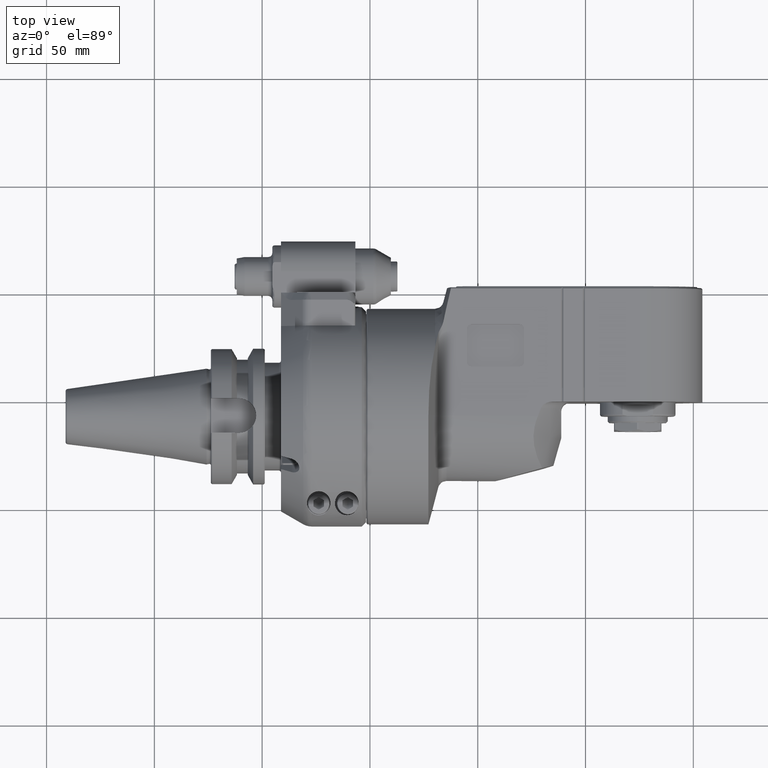
[diagram: clean part render]
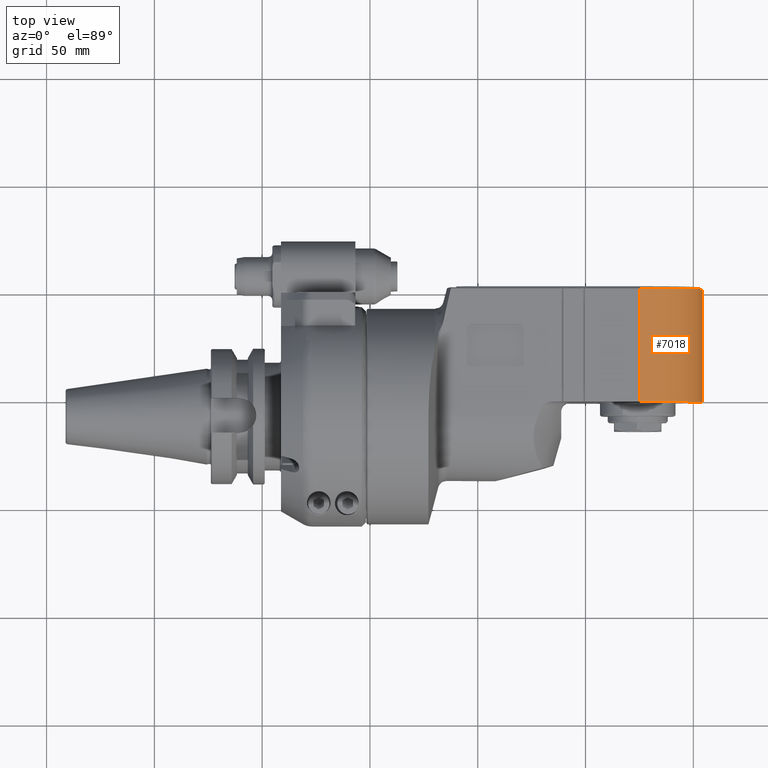
[diagram: same view with one face highlighted and labeled with its STEP entity id]
A machine part, top view. The second image highlights one B-rep face of the part: STEP entity #7018.
In plain terms, the highlighted cylindrical surface (partial cylindrical patch) has radius 29 mm, axis along (0, 1, 0).
Its self-contained STEP definition (entity closure, byte-faithful):
#695=FACE_OUTER_BOUND('',#1138,.T.);
#1138=EDGE_LOOP('',(#4908,#4909,#4910,#4911));
#1646=LINE('',#10678,#2146);
#1647=LINE('',#10682,#2147);
#2146=VECTOR('',#8450,52.5);
#2147=VECTOR('',#8455,52.5);
#2630=CIRCLE('',#7534,29.);
#2638=CIRCLE('',#7553,29.);
#2998=VERTEX_POINT('',#10604);
#2999=VERTEX_POINT('',#10606);
#3017=VERTEX_POINT('',#10668);
#3019=VERTEX_POINT('',#10680);
#3722=EDGE_CURVE('',#2998,#2999,#2630,.T.);
#3751=EDGE_CURVE('',#2998,#3017,#1646,.T.);
#3752=EDGE_CURVE('',#3019,#3017,#2638,.T.);
#3753=EDGE_CURVE('',#3019,#2999,#1647,.T.);
#4908=ORIENTED_EDGE('',*,*,#3751,.T.);
#4909=ORIENTED_EDGE('',*,*,#3752,.F.);
#4910=ORIENTED_EDGE('',*,*,#3753,.T.);
#4911=ORIENTED_EDGE('',*,*,#3722,.F.);
#6887=CYLINDRICAL_SURFACE('',#7552,29.);
#7018=ADVANCED_FACE('',(#695),#6887,.T.);
#7534=AXIS2_PLACEMENT_3D('',#10607,#8394,#8395);
#7552=AXIS2_PLACEMENT_3D('',#10679,#8451,#8452);
#7553=AXIS2_PLACEMENT_3D('',#10681,#8453,#8454);
#8394=DIRECTION('center_axis',(0.,-1.,0.));
#8395=DIRECTION('ref_axis',(1.,0.,0.));
#8450=DIRECTION('',(0.,1.,0.));
#8451=DIRECTION('center_axis',(0.,1.,0.));
#8452=DIRECTION('ref_axis',(1.,0.,0.));
#8453=DIRECTION('center_axis',(0.,1.,0.));
#8454=DIRECTION('ref_axis',(0.,0.,1.));
#8455=DIRECTION('',(0.,-1.,0.));
#10604=CARTESIAN_POINT('',(160.,6.5,1.));
#10606=CARTESIAN_POINT('',(131.,6.5,30.));
#10607=CARTESIAN_POINT('Origin',(131.,6.5,1.));
#10668=CARTESIAN_POINT('',(160.,59.,1.));
#10678=CARTESIAN_POINT('',(160.,6.5,1.));
#10679=CARTESIAN_POINT('Origin',(131.,0.,1.));
#10680=CARTESIAN_POINT('',(131.,59.,30.));
#10681=CARTESIAN_POINT('Origin',(131.,59.,1.));
#10682=CARTESIAN_POINT('',(131.,59.,30.));